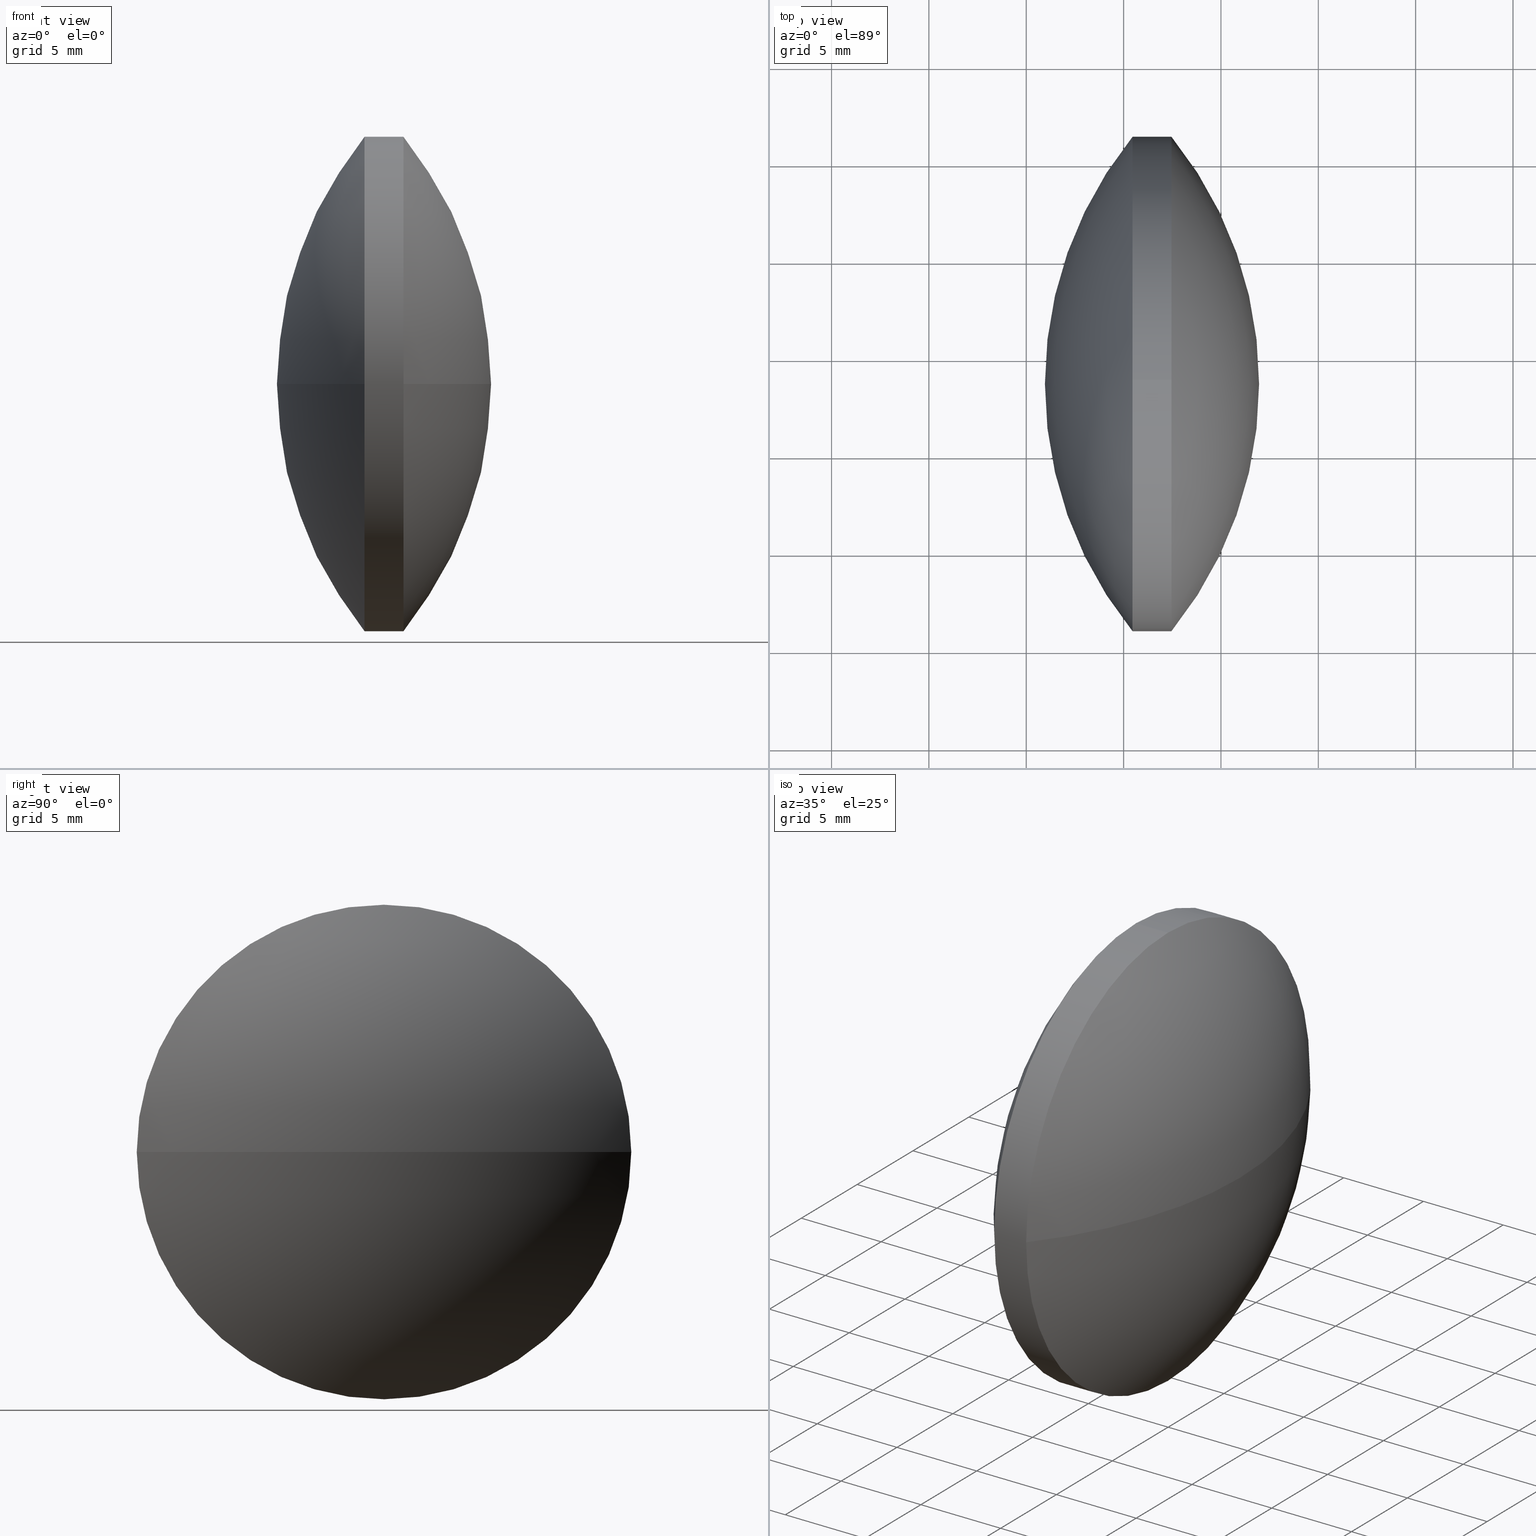
[diagram: canonical four-view strip — front | top / right | iso, engineering-drawing reading convention]
A machine part, canonical four-view strip (front | top / right | iso — engineering-drawing reading convention). The complete STEP part file that produces these views, byte-faithful:
ISO-10303-21;
HEADER;
FILE_DESCRIPTION (( 'STEP AP203' ),
    '1' );
FILE_NAME ('110139.STEP',
    '2019-07-08T09:06:18',
    ( '' ),
    ( '' ),
    'SwSTEP 2.0',
    'SolidWorks 2016',
    '' );
FILE_SCHEMA (( 'CONFIG_CONTROL_DESIGN' ));
ENDSEC;

DATA;
#1 = CC_DESIGN_PERSON_AND_ORGANIZATION_ASSIGNMENT ( #241, #38, ( #31 ) ) ;
#2 = AXIS2_PLACEMENT_3D ( 'NONE', #143, #4, #184 ) ;
#3 = DIRECTION ( 'NONE',  ( -0.0000000000000000000, 0.0000000000000000000, 1.000000000000000000 ) ) ;
#4 = DIRECTION ( 'NONE',  ( -0.0000000000000000000, 0.0000000000000000000, -1.000000000000000000 ) ) ;
#5 = ORIENTED_EDGE ( 'NONE', *, *, #150, .T. ) ;
#6 =( GEOMETRIC_REPRESENTATION_CONTEXT ( 3 ) GLOBAL_UNCERTAINTY_ASSIGNED_CONTEXT ( ( #291 ) ) GLOBAL_UNIT_ASSIGNED_CONTEXT ( ( #239, #271, #297 ) ) REPRESENTATION_CONTEXT ( 'NONE', 'WORKASPACE' ) );
#7 = DIRECTION ( 'NONE',  ( -1.000000000000000000, -0.0000000000000000000, -0.0000000000000000000 ) ) ;
#8 = CIRCLE ( 'NONE', #101, 12.69999999999999600 ) ;
#9 = CARTESIAN_POINT ( 'NONE',  ( 87.45786520323396500, 48.61611302318478100, 0.0000000000000000000 ) ) ;
#10 = DIRECTION ( 'NONE',  ( 0.0000000000000000000, 1.000000000000000000, 0.0000000000000000000 ) ) ;
#11 = DIRECTION ( 'NONE',  ( 0.0000000000000000000, 0.0000000000000000000, 1.000000000000000000 ) ) ;
#12 = ADVANCED_FACE ( 'NONE', ( #75 ), #118, .T. ) ;
#13 = PERSON_AND_ORGANIZATION ( #152, #293 ) ;
#14 = APPROVAL_ROLE ( '' ) ;
#15 = CALENDAR_DATE ( 2019, 8, 7 ) ;
#16 = PRODUCT ( '110139', '110139', '', ( #300 ) ) ;
#17 = CIRCLE ( 'NONE', #335, 20.17006843969368300 ) ;
#18 = PRODUCT_DEFINITION_FORMATION_WITH_SPECIFIED_SOURCE ( '�κ�', '', #16, .NOT_KNOWN. ) ;
#19 = AXIS2_PLACEMENT_3D ( 'NONE', #240, #323, #120 ) ;
#20 = PERSON_AND_ORGANIZATION ( #152, #293 ) ;
#21 = ORIENTED_EDGE ( 'NONE', *, *, #51, .F. ) ;
#22 = DATE_AND_TIME ( #132, #71 ) ;
#23 = SECURITY_CLASSIFICATION ( '', '', #100 ) ;
#24 = EDGE_CURVE ( 'NONE', #314, #225, #60, .T. ) ;
#25 = DIRECTION ( 'NONE',  ( 1.000000000000000000, 0.0000000000000000000, 0.0000000000000000000 ) ) ;
#26 = DIRECTION ( 'NONE',  ( -1.000000000000000000, -0.0000000000000000000, -0.0000000000000000000 ) ) ;
#27 = LOCAL_TIME ( 17, 6, 18.00000000000000000, #219 ) ;
#28 = APPROVAL_DATE_TIME ( #220, #30 ) ;
#29 = VERTEX_POINT ( 'NONE', #261 ) ;
#30 = APPROVAL ( #246, 'δָ��' ) ;
#31 = SECURITY_CLASSIFICATION ( '', '', #123 ) ;
#32 = CARTESIAN_POINT ( 'NONE',  ( 91.95816463180538800, 48.61611302318477400, 0.0000000000000000000 ) ) ;
#33 = DATE_AND_TIME ( #186, #342 ) ;
#34 = VECTOR ( 'NONE', #333, 1000.000000000000000 ) ;
#35 = DIRECTION ( 'NONE',  ( 0.0000000000000000000, 0.0000000000000000000, 1.000000000000000000 ) ) ;
#36 = APPLICATION_PROTOCOL_DEFINITION ( 'international standard', 'config_control_design', 1994, #189 ) ;
#37 = CC_DESIGN_APPROVAL ( #214, ( #18 ) ) ;
#38 = PERSON_AND_ORGANIZATION_ROLE ( 'classification_officer' ) ;
#39 = CIRCLE ( 'NONE', #170, 12.69999999999999600 ) ;
#40 = CARTESIAN_POINT ( 'NONE',  ( 85.45852234609111500, 48.61611302318478100, 0.0000000000000000000 ) ) ;
#41 = ORIENTED_EDGE ( 'NONE', *, *, #340, .T. ) ;
#42 = AXIS2_PLACEMENT_3D ( 'NONE', #85, #266, #269 ) ;
#43 = APPROVAL ( #194, 'δָ��' ) ;
#44 = AXIS2_PLACEMENT_3D ( 'NONE', #183, #3, #25 ) ;
#45 = PERSON_AND_ORGANIZATION ( #152, #293 ) ;
#46 = ORIENTED_EDGE ( 'NONE', *, *, #258, .F. ) ;
#47 = CIRCLE ( 'NONE', #201, 12.69999999999999600 ) ;
#48 = ADVANCED_BREP_SHAPE_REPRESENTATION ( '110139', ( #137, #339 ), #6 ) ;
#49 = CC_DESIGN_DATE_AND_TIME_ASSIGNMENT ( #253, #169, ( #129 ) ) ;
#50 = EDGE_LOOP ( 'NONE', ( #77, #203, #103, #310 ) ) ;
#51 = EDGE_CURVE ( 'NONE', #208, #232, #309, .T. ) ;
#52 = CARTESIAN_POINT ( 'NONE',  ( 85.45852234609111500, 48.61611302318478100, 0.0000000000000000000 ) ) ;
#53 = CARTESIAN_POINT ( 'NONE',  ( 71.78809619211168100, 48.61611302318477400, 0.0000000000000000000 ) ) ;
#54 = ORIENTED_EDGE ( 'NONE', *, *, #226, .F. ) ;
#55 = AXIS2_PLACEMENT_3D ( 'NONE', #86, #7, #140 ) ;
#56 = CC_DESIGN_APPROVAL ( #43, ( #31 ) ) ;
#57 = CARTESIAN_POINT ( 'NONE',  ( 101.1282913572133600, 48.61611302318477400, 0.0000000000000000000 ) ) ;
#58 = DESIGN_CONTEXT ( 'detailed design', #189, 'design' ) ;
#59 = PERSON_AND_ORGANIZATION ( #152, #293 ) ;
#60 = CIRCLE ( 'NONE', #255, 20.17006843969371100 ) ;
#61 = CARTESIAN_POINT ( 'NONE',  ( 0.0000000000000000000, 0.0000000000000000000, 0.0000000000000000000 ) ) ;
#62 = DIRECTION ( 'NONE',  ( 1.000000000000000000, 0.0000000000000000000, 0.0000000000000000000 ) ) ;
#63 = CC_DESIGN_PERSON_AND_ORGANIZATION_ASSIGNMENT ( #20, #70, ( #195 ) ) ;
#64 = CARTESIAN_POINT ( 'NONE',  ( 79.30540135083715800, 48.61611302318478100, -12.69999999999999600 ) ) ;
#65 = CIRCLE ( 'NONE', #234, 20.17006843969368300 ) ;
#66 = APPROVAL_ROLE ( '' ) ;
#67 = AXIS2_PLACEMENT_3D ( 'NONE', #321, #270, #142 ) ;
#68 = CARTESIAN_POINT ( 'NONE',  ( 71.78809619211168100, 48.61611302318477400, 0.0000000000000000000 ) ) ;
#69 = APPLICATION_PROTOCOL_DEFINITION ( 'international standard', 'config_control_design', 1994, #124 ) ;
#70 = PERSON_AND_ORGANIZATION_ROLE ( 'creator' ) ;
#71 = LOCAL_TIME ( 17, 6, 18.00000000000000000, #162 ) ;
#72 = PERSON_AND_ORGANIZATION_ROLE ( 'creator' ) ;
#73 = CC_DESIGN_PERSON_AND_ORGANIZATION_ASSIGNMENT ( #45, #146, ( #263 ) ) ;
#74 = EDGE_CURVE ( 'NONE', #314, #208, #316, .T. ) ;
#75 = FACE_OUTER_BOUND ( 'NONE', #237, .T. ) ;
#76 = CALENDAR_DATE ( 2019, 8, 7 ) ;
#77 = ORIENTED_EDGE ( 'NONE', *, *, #150, .F. ) ;
#78 = DIRECTION ( 'NONE',  ( 0.0000000000000000000, 1.000000000000000000, 0.0000000000000000000 ) ) ;
#79 = CIRCLE ( 'NONE', #42, 12.69999999999999600 ) ;
#80 = EDGE_CURVE ( 'NONE', #232, #341, #178, .T. ) ;
#81 = CARTESIAN_POINT ( 'NONE',  ( 79.30540135083715800, 48.61611302318478100, 0.0000000000000000000 ) ) ;
#82 = APPROVAL_PERSON_ORGANIZATION ( #155, #282, #224 ) ;
#83 = COORDINATED_UNIVERSAL_TIME_OFFSET ( 8, 0, .AHEAD. ) ;
#84 = LOCAL_TIME ( 17, 6, 18.00000000000000000, #286 ) ;
#85 = CARTESIAN_POINT ( 'NONE',  ( 85.45852234609111500, 48.61611302318478100, 0.0000000000000000000 ) ) ;
#86 = CARTESIAN_POINT ( 'NONE',  ( 87.45786520323396500, 48.61611302318478100, 0.0000000000000000000 ) ) ;
#87 = CC_DESIGN_PERSON_AND_ORGANIZATION_ASSIGNMENT ( #285, #141, ( #16 ) ) ;
#88 = PRODUCT_DEFINITION_SHAPE ( 'NONE', 'NONE',  #129 ) ;
#89 = APPLICATION_PROTOCOL_DEFINITION ( 'international standard', 'config_control_design', 1994, #205 ) ;
#90 = ADVANCED_FACE ( 'NONE', ( #299 ), #243, .T. ) ;
#91 = APPROVAL_DATE_TIME ( #259, #176 ) ;
#92 = VERTEX_POINT ( 'NONE', #180 ) ;
#93 = DIRECTION ( 'NONE',  ( -0.0000000000000000000, 0.0000000000000000000, 1.000000000000000000 ) ) ;
#94 = APPROVAL_STATUS ( 'not_yet_approved' ) ;
#95 = DIRECTION ( 'NONE',  ( 0.0000000000000000000, 1.224646799147353200E-016, -1.000000000000000000 ) ) ;
#96 = APPLICATION_PROTOCOL_DEFINITION ( 'international standard', 'config_control_design', 1994, #185 ) ;
#97 = ADVANCED_FACE ( 'NONE', ( #127 ), #265, .T. ) ;
#98 = CALENDAR_DATE ( 2019, 8, 7 ) ;
#99 = PERSON_AND_ORGANIZATION ( #152, #293 ) ;
#100 = SECURITY_CLASSIFICATION_LEVEL ( 'unclassified' ) ;
#101 = AXIS2_PLACEMENT_3D ( 'NONE', #188, #328, #209 ) ;
#102 = APPROVAL_ROLE ( '' ) ;
#103 = ORIENTED_EDGE ( 'NONE', *, *, #258, .T. ) ;
#104 = ORIENTED_EDGE ( 'NONE', *, *, #340, .F. ) ;
#105 = AXIS2_PLACEMENT_3D ( 'NONE', #53, #204, #138 ) ;
#106 = PERSON_AND_ORGANIZATION ( #152, #293 ) ;
#107 = LOCAL_TIME ( 17, 6, 18.00000000000000000, #83 ) ;
#108 = CLOSED_SHELL ( 'NONE', ( #216, #97, #12, #218, #193, #90 ) ) ;
#109 = DESIGN_CONTEXT ( 'detailed design', #124, 'design' ) ;
#110 = APPROVAL_DATE_TIME ( #22, #214 ) ;
#111 = CYLINDRICAL_SURFACE ( 'NONE', #19, 12.69999999999999600 ) ;
#112 = EDGE_LOOP ( 'NONE', ( #294, #149, #175, #21 ) ) ;
#113 = EDGE_CURVE ( 'NONE', #341, #202, #39, .T. ) ;
#114 = DIRECTION ( 'NONE',  ( 0.0000000000000000000, 0.0000000000000000000, 1.000000000000000000 ) ) ;
#115 = CC_DESIGN_SECURITY_CLASSIFICATION ( #31, ( #263 ) ) ;
#116 = APPROVAL_DATE_TIME ( #177, #274 ) ;
#117 = APPROVAL_PERSON_ORGANIZATION ( #227, #43, #121 ) ;
#118 = SPHERICAL_SURFACE ( 'NONE', #343, 20.17006843969367600 ) ;
#119 = CARTESIAN_POINT ( 'NONE',  ( 87.45786520323396500, 61.31611302318477600, 0.0000000000000000000 ) ) ;
#120 = DIRECTION ( 'NONE',  ( 0.0000000000000000000, 0.0000000000000000000, 1.000000000000000000 ) ) ;
#121 = APPROVAL_ROLE ( '' ) ;
#122 = EDGE_CURVE ( 'NONE', #225, #312, #47, .T. ) ;
#123 = SECURITY_CLASSIFICATION_LEVEL ( 'unclassified' ) ;
#124 = APPLICATION_CONTEXT ( 'configuration controlled 3d designs of mechanical parts and assemblies' ) ;
#125 = DATE_AND_TIME ( #292, #284 ) ;
#126 = DATE_TIME_ROLE ( 'classification_date' ) ;
#127 = FACE_OUTER_BOUND ( 'NONE', #112, .T. ) ;
#128 = CC_DESIGN_PERSON_AND_ORGANIZATION_ASSIGNMENT ( #267, #252, ( #279 ) ) ;
#129 = PRODUCT_DEFINITION ( 'δ֪', '', #263, #109 ) ;
#130 = CIRCLE ( 'NONE', #55, 12.69999999999999600 ) ;
#131 = ORIENTED_EDGE ( 'NONE', *, *, #313, .F. ) ;
#132 = CALENDAR_DATE ( 2019, 8, 7 ) ;
#133 = LINE ( 'NONE', #319, #34 ) ;
#134 = EDGE_CURVE ( 'NONE', #202, #92, #235, .T. ) ;
#135 = SPHERICAL_SURFACE ( 'NONE', #2, 20.17006843969367600 ) ;
#136 = DIRECTION ( 'NONE',  ( 0.0000000000000000000, 0.0000000000000000000, 1.000000000000000000 ) ) ;
#137 = MANIFOLD_SOLID_BREP ( '��ת1', #108 ) ;
#138 = DIRECTION ( 'NONE',  ( 0.0000000000000000000, 1.000000000000000000, 0.0000000000000000000 ) ) ;
#139 = CARTESIAN_POINT ( 'NONE',  ( 87.45786520323396500, 35.91611302318477800, -1.555301434917138000E-015 ) ) ;
#140 = DIRECTION ( 'NONE',  ( 0.0000000000000000000, 0.0000000000000000000, 1.000000000000000000 ) ) ;
#141 = PERSON_AND_ORGANIZATION_ROLE ( 'design_owner' ) ;
#142 = DIRECTION ( 'NONE',  ( 0.0000000000000000000, 0.0000000000000000000, 1.000000000000000000 ) ) ;
#143 = CARTESIAN_POINT ( 'NONE',  ( 101.1282913572133600, 48.61611302318477400, 0.0000000000000000000 ) ) ;
#144 = CC_DESIGN_APPROVAL ( #176, ( #23 ) ) ;
#145 = CARTESIAN_POINT ( 'NONE',  ( 87.45786520323396500, 48.61611302318478100, 0.0000000000000000000 ) ) ;
#146 = PERSON_AND_ORGANIZATION_ROLE ( 'creator' ) ;
#147 = COORDINATED_UNIVERSAL_TIME_OFFSET ( 8, 0, .AHEAD. ) ;
#148 = APPROVAL_PERSON_ORGANIZATION ( #228, #274, #102 ) ;
#149 = ORIENTED_EDGE ( 'NONE', *, *, #24, .T. ) ;
#150 = EDGE_CURVE ( 'NONE', #202, #231, #17, .T. ) ;
#151 = DATE_AND_TIME ( #249, #272 ) ;
#152 = PERSON ( 'δָ��', 'δָ��', 'δָ��', ('δָ��'), ('δָ��'), ('δָ��') ) ;
#153 = APPROVAL_PERSON_ORGANIZATION ( #221, #176, #250 ) ;
#154 = CALENDAR_DATE ( 2019, 8, 7 ) ;
#155 = PERSON_AND_ORGANIZATION ( #152, #293 ) ;
#156 = ORIENTED_EDGE ( 'NONE', *, *, #113, .F. ) ;
#157 = DIRECTION ( 'NONE',  ( -0.0000000000000000000, 0.0000000000000000000, -1.000000000000000000 ) ) ;
#158 = ORIENTED_EDGE ( 'NONE', *, *, #134, .F. ) ;
#159 = DIRECTION ( 'NONE',  ( -1.000000000000000000, -0.0000000000000000000, -0.0000000000000000000 ) ) ;
#160 = CC_DESIGN_SECURITY_CLASSIFICATION ( #23, ( #18 ) ) ;
#161 = CALENDAR_DATE ( 2019, 8, 7 ) ;
#162 = COORDINATED_UNIVERSAL_TIME_OFFSET ( 8, 0, .AHEAD. ) ;
#163 = EDGE_LOOP ( 'NONE', ( #327, #173, #260, #245, #158, #156 ) ) ;
#164 = DIRECTION ( 'NONE',  ( 1.000000000000000000, 0.0000000000000000000, 0.0000000000000000000 ) ) ;
#165 = ORIENTED_EDGE ( 'NONE', *, *, #122, .F. ) ;
#166 = ORIENTED_EDGE ( 'NONE', *, *, #24, .F. ) ;
#167 = DIRECTION ( 'NONE',  ( 0.0000000000000000000, 0.0000000000000000000, 1.000000000000000000 ) ) ;
#168 = DIRECTION ( 'NONE',  ( 0.0000000000000000000, 1.000000000000000000, 1.224646799147353000E-016 ) ) ;
#169 = DATE_TIME_ROLE ( 'creation_date' ) ;
#170 = AXIS2_PLACEMENT_3D ( 'NONE', #52, #329, #167 ) ;
#171 = DIRECTION ( 'NONE',  ( -0.0000000000000000000, 0.0000000000000000000, -1.000000000000000000 ) ) ;
#172 = DATE_AND_TIME ( #76, #305 ) ;
#173 = ORIENTED_EDGE ( 'NONE', *, *, #190, .T. ) ;
#174 = PERSON_AND_ORGANIZATION_ROLE ( 'design_supplier' ) ;
#175 = ORIENTED_EDGE ( 'NONE', *, *, #190, .F. ) ;
#176 = APPROVAL ( #94, 'δָ��' ) ;
#177 = DATE_AND_TIME ( #98, #27 ) ;
#178 = LINE ( 'NONE', #64, #345 ) ;
#179 = ORIENTED_EDGE ( 'NONE', *, *, #51, .T. ) ;
#180 = CARTESIAN_POINT ( 'NONE',  ( 85.45852234609111500, 48.61611302318478100, 12.69999999999999600 ) ) ;
#181 = AXIS2_PLACEMENT_3D ( 'NONE', #213, #211, #62 ) ;
#182 = AXIS2_PLACEMENT_3D ( 'NONE', #81, #26, #114 ) ;
#183 = CARTESIAN_POINT ( 'NONE',  ( 71.78809619211168100, 48.61611302318477400, 0.0000000000000000000 ) ) ;
#184 = DIRECTION ( 'NONE',  ( 0.0000000000000000000, 1.000000000000000000, 0.0000000000000000000 ) ) ;
#185 = APPLICATION_CONTEXT ( 'configuration controlled 3d designs of mechanical parts and assemblies' ) ;
#186 = CALENDAR_DATE ( 2019, 8, 7 ) ;
#187 = COORDINATED_UNIVERSAL_TIME_OFFSET ( 8, 0, .AHEAD. ) ;
#188 = CARTESIAN_POINT ( 'NONE',  ( 85.45852234609111500, 48.61611302318478100, 0.0000000000000000000 ) ) ;
#189 = APPLICATION_CONTEXT ( 'configuration controlled 3d designs of mechanical parts and assemblies' ) ;
#190 = EDGE_CURVE ( 'NONE', #232, #225, #191, .T. ) ;
#191 = CIRCLE ( 'NONE', #288, 12.69999999999999600 ) ;
#192 = PERSON_AND_ORGANIZATION_ROLE ( 'creator' ) ;
#193 = ADVANCED_FACE ( 'NONE', ( #289 ), #197, .T. ) ;
#194 = APPROVAL_STATUS ( 'not_yet_approved' ) ;
#195 = PRODUCT_DEFINITION ( 'δ֪', '', #18, #58 ) ;
#196 = CC_DESIGN_APPROVAL ( #274, ( #263 ) ) ;
#197 = SPHERICAL_SURFACE ( 'NONE', #278, 20.17006843969370800 ) ;
#198 = CC_DESIGN_PERSON_AND_ORGANIZATION_ASSIGNMENT ( #298, #192, ( #18 ) ) ;
#199 = APPROVAL_DATE_TIME ( #242, #43 ) ;
#200 = ORIENTED_EDGE ( 'NONE', *, *, #313, .T. ) ;
#201 = AXIS2_PLACEMENT_3D ( 'NONE', #9, #264, #136 ) ;
#202 = VERTEX_POINT ( 'NONE', #301 ) ;
#203 = ORIENTED_EDGE ( 'NONE', *, *, #134, .T. ) ;
#204 = DIRECTION ( 'NONE',  ( -0.0000000000000000000, 0.0000000000000000000, -1.000000000000000000 ) ) ;
#205 = APPLICATION_CONTEXT ( 'configuration controlled 3d designs of mechanical parts and assemblies' ) ;
#206 = COORDINATED_UNIVERSAL_TIME_OFFSET ( 8, 0, .AHEAD. ) ;
#207 = APPROVAL_PERSON_ORGANIZATION ( #99, #30, #66 ) ;
#208 = VERTEX_POINT ( 'NONE', #119 ) ;
#209 = DIRECTION ( 'NONE',  ( 0.0000000000000000000, 0.0000000000000000000, 1.000000000000000000 ) ) ;
#210 = EDGE_CURVE ( 'NONE', #312, #92, #133, .T. ) ;
#211 = DIRECTION ( 'NONE',  ( 0.0000000000000000000, 0.0000000000000000000, 1.000000000000000000 ) ) ;
#212 = FACE_OUTER_BOUND ( 'NONE', #262, .T. ) ;
#213 = CARTESIAN_POINT ( 'NONE',  ( 0.0000000000000000000, 0.0000000000000000000, 0.0000000000000000000 ) ) ;
#214 = APPROVAL ( #332, 'δָ��' ) ;
#215 = DIRECTION ( 'NONE',  ( 0.0000000000000000000, 0.0000000000000000000, 1.000000000000000000 ) ) ;
#216 = ADVANCED_FACE ( 'NONE', ( #212 ), #111, .T. ) ;
#217 = AXIS2_PLACEMENT_3D ( 'NONE', #40, #331, #215 ) ;
#218 = ADVANCED_FACE ( 'NONE', ( #338 ), #135, .T. ) ;
#219 = COORDINATED_UNIVERSAL_TIME_OFFSET ( 8, 0, .AHEAD. ) ;
#220 = DATE_AND_TIME ( #154, #107 ) ;
#221 = PERSON_AND_ORGANIZATION ( #152, #293 ) ;
#222 = PRODUCT_DEFINITION_SHAPE ( 'NONE', 'NONE',  #195 ) ;
#223 = ORIENTED_EDGE ( 'NONE', *, *, #80, .T. ) ;
#224 = APPROVAL_ROLE ( '' ) ;
#225 = VERTEX_POINT ( 'NONE', #139 ) ;
#226 = EDGE_CURVE ( 'NONE', #29, #231, #65, .T. ) ;
#227 = PERSON_AND_ORGANIZATION ( #152, #293 ) ;
#228 = PERSON_AND_ORGANIZATION ( #152, #293 ) ;
#229 = APPROVAL_PERSON_ORGANIZATION ( #13, #214, #14 ) ;
#230 = CARTESIAN_POINT ( 'NONE',  ( 101.1282913572133600, 48.61611302318477400, 0.0000000000000000000 ) ) ;
#231 = VERTEX_POINT ( 'NONE', #322 ) ;
#232 = VERTEX_POINT ( 'NONE', #295 ) ;
#233 = CC_DESIGN_PERSON_AND_ORGANIZATION_ASSIGNMENT ( #280, #251, ( #18 ) ) ;
#234 = AXIS2_PLACEMENT_3D ( 'NONE', #57, #93, #238 ) ;
#235 = CIRCLE ( 'NONE', #217, 12.69999999999999600 ) ;
#236 = DIRECTION ( 'NONE',  ( 0.0000000000000000000, 1.000000000000000000, 1.224646799147353000E-016 ) ) ;
#237 = EDGE_LOOP ( 'NONE', ( #41, #281, #5, #54 ) ) ;
#238 = DIRECTION ( 'NONE',  ( 1.000000000000000000, 0.0000000000000000000, 0.0000000000000000000 ) ) ;
#239 =( LENGTH_UNIT ( ) NAMED_UNIT ( * ) SI_UNIT ( .MILLI., .METRE. ) );
#240 = CARTESIAN_POINT ( 'NONE',  ( 79.30540135083715800, 48.61611302318478100, 0.0000000000000000000 ) ) ;
#241 = PERSON_AND_ORGANIZATION ( #152, #293 ) ;
#242 = DATE_AND_TIME ( #254, #325 ) ;
#243 = CYLINDRICAL_SURFACE ( 'NONE', #182, 12.69999999999999600 ) ;
#244 = CC_DESIGN_APPROVAL ( #30, ( #195 ) ) ;
#245 = ORIENTED_EDGE ( 'NONE', *, *, #210, .T. ) ;
#246 = APPROVAL_STATUS ( 'not_yet_approved' ) ;
#247 = DATE_TIME_ROLE ( 'classification_date' ) ;
#248 = CARTESIAN_POINT ( 'NONE',  ( 101.1282913572133600, 48.61611302318477400, 0.0000000000000000000 ) ) ;
#249 = CALENDAR_DATE ( 2019, 8, 7 ) ;
#250 = APPROVAL_ROLE ( '' ) ;
#251 = PERSON_AND_ORGANIZATION_ROLE ( 'design_supplier' ) ;
#252 = PERSON_AND_ORGANIZATION_ROLE ( 'design_owner' ) ;
#253 = DATE_AND_TIME ( #15, #84 ) ;
#254 = CALENDAR_DATE ( 2019, 8, 7 ) ;
#255 = AXIS2_PLACEMENT_3D ( 'NONE', #318, #344, #236 ) ;
#256 = CC_DESIGN_APPROVAL ( #282, ( #129 ) ) ;
#257 = CC_DESIGN_PERSON_AND_ORGANIZATION_ASSIGNMENT ( #106, #72, ( #129 ) ) ;
#258 = EDGE_CURVE ( 'NONE', #92, #29, #79, .T. ) ;
#259 = DATE_AND_TIME ( #161, #308 ) ;
#260 = ORIENTED_EDGE ( 'NONE', *, *, #122, .T. ) ;
#261 = CARTESIAN_POINT ( 'NONE',  ( 85.45852234609111500, 61.31611302318477600, 0.0000000000000000000 ) ) ;
#262 = EDGE_LOOP ( 'NONE', ( #179, #223, #104, #46, #326, #200 ) ) ;
#263 = PRODUCT_DEFINITION_FORMATION_WITH_SPECIFIED_SOURCE ( '�κ�', '', #279, .NOT_KNOWN. ) ;
#264 = DIRECTION ( 'NONE',  ( -1.000000000000000000, -0.0000000000000000000, -0.0000000000000000000 ) ) ;
#265 = SPHERICAL_SURFACE ( 'NONE', #105, 20.17006843969370800 ) ;
#266 = DIRECTION ( 'NONE',  ( -1.000000000000000000, -0.0000000000000000000, -0.0000000000000000000 ) ) ;
#267 = PERSON_AND_ORGANIZATION ( #152, #293 ) ;
#268 = CARTESIAN_POINT ( 'NONE',  ( 87.45786520323396500, 48.61611302318478100, 12.69999999999999600 ) ) ;
#269 = DIRECTION ( 'NONE',  ( 0.0000000000000000000, 0.0000000000000000000, 1.000000000000000000 ) ) ;
#270 = DIRECTION ( 'NONE',  ( -1.000000000000000000, -0.0000000000000000000, -0.0000000000000000000 ) ) ;
#271 =( NAMED_UNIT ( * ) PLANE_ANGLE_UNIT ( ) SI_UNIT ( $, .RADIAN. ) );
#272 = LOCAL_TIME ( 17, 6, 18.00000000000000000, #303 ) ;
#273 = CC_DESIGN_PERSON_AND_ORGANIZATION_ASSIGNMENT ( #59, #334, ( #23 ) ) ;
#274 = APPROVAL ( #307, 'δָ��' ) ;
#275 = MECHANICAL_CONTEXT ( 'NONE', #185, 'mechanical' ) ;
#276 = DIRECTION ( 'NONE',  ( -1.000000000000000000, -0.0000000000000000000, -0.0000000000000000000 ) ) ;
#277 = DATE_TIME_ROLE ( 'creation_date' ) ;
#278 = AXIS2_PLACEMENT_3D ( 'NONE', #68, #171, #10 ) ;
#279 = PRODUCT ( '110139', '110139', '', ( #275 ) ) ;
#280 = PERSON_AND_ORGANIZATION ( #152, #293 ) ;
#281 = ORIENTED_EDGE ( 'NONE', *, *, #113, .T. ) ;
#282 = APPROVAL ( #302, 'δָ��' ) ;
#283 = PRODUCT_RELATED_PRODUCT_CATEGORY ( 'detail', '', ( #279 ) ) ;
#284 = LOCAL_TIME ( 17, 6, 18.00000000000000000, #304 ) ;
#285 = PERSON_AND_ORGANIZATION ( #152, #293 ) ;
#286 = COORDINATED_UNIVERSAL_TIME_OFFSET ( 8, 0, .AHEAD. ) ;
#287 = PRODUCT_RELATED_PRODUCT_CATEGORY ( 'detail', '', ( #16 ) ) ;
#288 = AXIS2_PLACEMENT_3D ( 'NONE', #145, #276, #11 ) ;
#289 = FACE_OUTER_BOUND ( 'NONE', #306, .T. ) ;
#290 = CC_DESIGN_DATE_AND_TIME_ASSIGNMENT ( #33, #247, ( #23 ) ) ;
#291 = UNCERTAINTY_MEASURE_WITH_UNIT (LENGTH_MEASURE( 1.000000000000000100E-005 ), #239, 'distance_accuracy_value', 'NONE');
#292 = CALENDAR_DATE ( 2019, 8, 7 ) ;
#293 = ORGANIZATION ( 'δָ��', 'δָ��', '' ) ;
#294 = ORIENTED_EDGE ( 'NONE', *, *, #74, .F. ) ;
#295 = CARTESIAN_POINT ( 'NONE',  ( 87.45786520323396500, 48.61611302318478100, -12.69999999999999600 ) ) ;
#296 = CARTESIAN_POINT ( 'NONE',  ( 85.45852234609111500, 48.61611302318478100, -12.69999999999999600 ) ) ;
#297 =( NAMED_UNIT ( * ) SI_UNIT ( $, .STERADIAN. ) SOLID_ANGLE_UNIT ( ) );
#298 = PERSON_AND_ORGANIZATION ( #152, #293 ) ;
#299 = FACE_OUTER_BOUND ( 'NONE', #163, .T. ) ;
#300 = MECHANICAL_CONTEXT ( 'NONE', #205, 'mechanical' ) ;
#301 = CARTESIAN_POINT ( 'NONE',  ( 85.45852234609111500, 35.91611302318478500, -1.555301434917137800E-015 ) ) ;
#302 = APPROVAL_STATUS ( 'not_yet_approved' ) ;
#303 = COORDINATED_UNIVERSAL_TIME_OFFSET ( 8, 0, .AHEAD. ) ;
#304 = COORDINATED_UNIVERSAL_TIME_OFFSET ( 8, 0, .AHEAD. ) ;
#305 = LOCAL_TIME ( 17, 6, 18.00000000000000000, #147 ) ;
#306 = EDGE_LOOP ( 'NONE', ( #166, #320, #131, #165 ) ) ;
#307 = APPROVAL_STATUS ( 'not_yet_approved' ) ;
#308 = LOCAL_TIME ( 17, 6, 18.00000000000000000, #206 ) ;
#309 = CIRCLE ( 'NONE', #67, 12.69999999999999600 ) ;
#310 = ORIENTED_EDGE ( 'NONE', *, *, #226, .T. ) ;
#311 = SHAPE_DEFINITION_REPRESENTATION ( #88, #48 ) ;
#312 = VERTEX_POINT ( 'NONE', #268 ) ;
#313 = EDGE_CURVE ( 'NONE', #312, #208, #130, .T. ) ;
#314 = VERTEX_POINT ( 'NONE', #32 ) ;
#315 = PERSON_AND_ORGANIZATION ( #152, #293 ) ;
#316 = CIRCLE ( 'NONE', #44, 20.17006843969371100 ) ;
#317 = CC_DESIGN_DATE_AND_TIME_ASSIGNMENT ( #172, #277, ( #195 ) ) ;
#318 = CARTESIAN_POINT ( 'NONE',  ( 71.78809619211168100, 48.61611302318477400, 0.0000000000000000000 ) ) ;
#319 = CARTESIAN_POINT ( 'NONE',  ( 79.30540135083715800, 48.61611302318478100, 12.69999999999999600 ) ) ;
#320 = ORIENTED_EDGE ( 'NONE', *, *, #74, .T. ) ;
#321 = CARTESIAN_POINT ( 'NONE',  ( 87.45786520323396500, 48.61611302318478100, 0.0000000000000000000 ) ) ;
#322 = CARTESIAN_POINT ( 'NONE',  ( 80.95822291751966300, 48.61611302318477400, 0.0000000000000000000 ) ) ;
#323 = DIRECTION ( 'NONE',  ( -1.000000000000000000, -0.0000000000000000000, -0.0000000000000000000 ) ) ;
#324 = APPROVAL_DATE_TIME ( #125, #282 ) ;
#325 = LOCAL_TIME ( 17, 6, 18.00000000000000000, #187 ) ;
#326 = ORIENTED_EDGE ( 'NONE', *, *, #210, .F. ) ;
#327 = ORIENTED_EDGE ( 'NONE', *, *, #80, .F. ) ;
#328 = DIRECTION ( 'NONE',  ( -1.000000000000000000, -0.0000000000000000000, -0.0000000000000000000 ) ) ;
#329 = DIRECTION ( 'NONE',  ( -1.000000000000000000, -0.0000000000000000000, -0.0000000000000000000 ) ) ;
#330 = CC_DESIGN_PERSON_AND_ORGANIZATION_ASSIGNMENT ( #315, #174, ( #263 ) ) ;
#331 = DIRECTION ( 'NONE',  ( -1.000000000000000000, -0.0000000000000000000, -0.0000000000000000000 ) ) ;
#332 = APPROVAL_STATUS ( 'not_yet_approved' ) ;
#333 = DIRECTION ( 'NONE',  ( -1.000000000000000000, -0.0000000000000000000, -0.0000000000000000000 ) ) ;
#334 = PERSON_AND_ORGANIZATION_ROLE ( 'classification_officer' ) ;
#335 = AXIS2_PLACEMENT_3D ( 'NONE', #248, #95, #168 ) ;
#336 = CC_DESIGN_DATE_AND_TIME_ASSIGNMENT ( #151, #126, ( #31 ) ) ;
#337 = COORDINATED_UNIVERSAL_TIME_OFFSET ( 8, 0, .AHEAD. ) ;
#338 = FACE_OUTER_BOUND ( 'NONE', #50, .T. ) ;
#339 = AXIS2_PLACEMENT_3D ( 'NONE', #61, #35, #164 ) ;
#340 = EDGE_CURVE ( 'NONE', #29, #341, #8, .T. ) ;
#341 = VERTEX_POINT ( 'NONE', #296 ) ;
#342 = LOCAL_TIME ( 17, 6, 18.00000000000000000, #337 ) ;
#343 = AXIS2_PLACEMENT_3D ( 'NONE', #230, #157, #78 ) ;
#344 = DIRECTION ( 'NONE',  ( 0.0000000000000000000, 1.224646799147353200E-016, -1.000000000000000000 ) ) ;
#345 = VECTOR ( 'NONE', #159, 1000.000000000000000 ) ;
ENDSEC;
END-ISO-10303-21;
